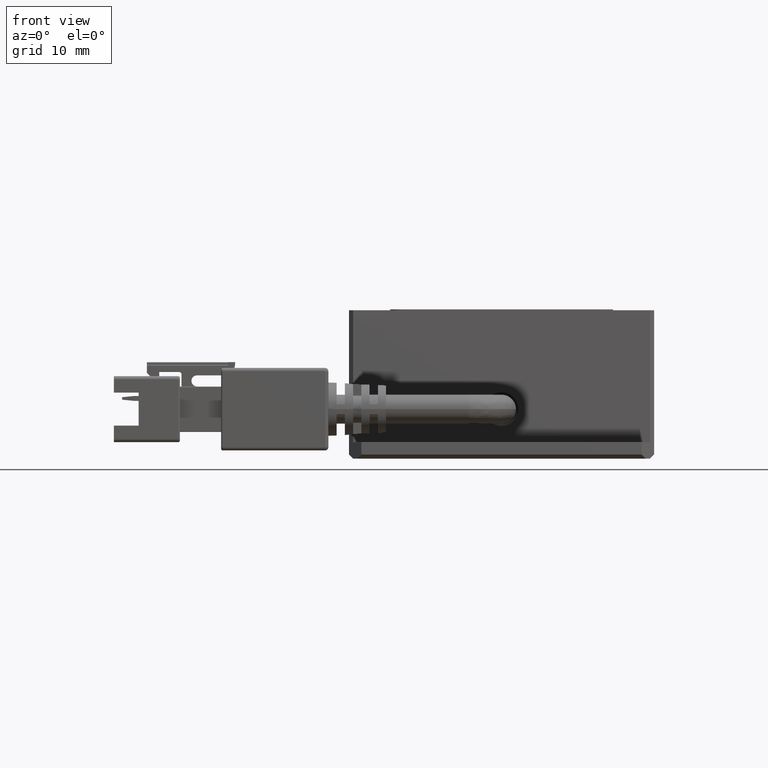
[diagram: clean part render]
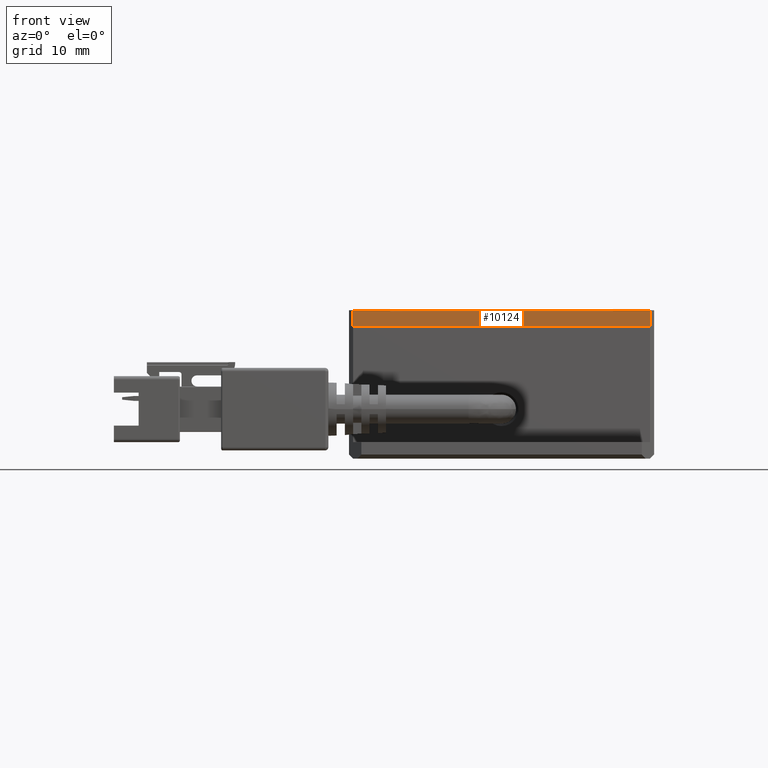
[diagram: same view with one face highlighted and labeled with its STEP entity id]
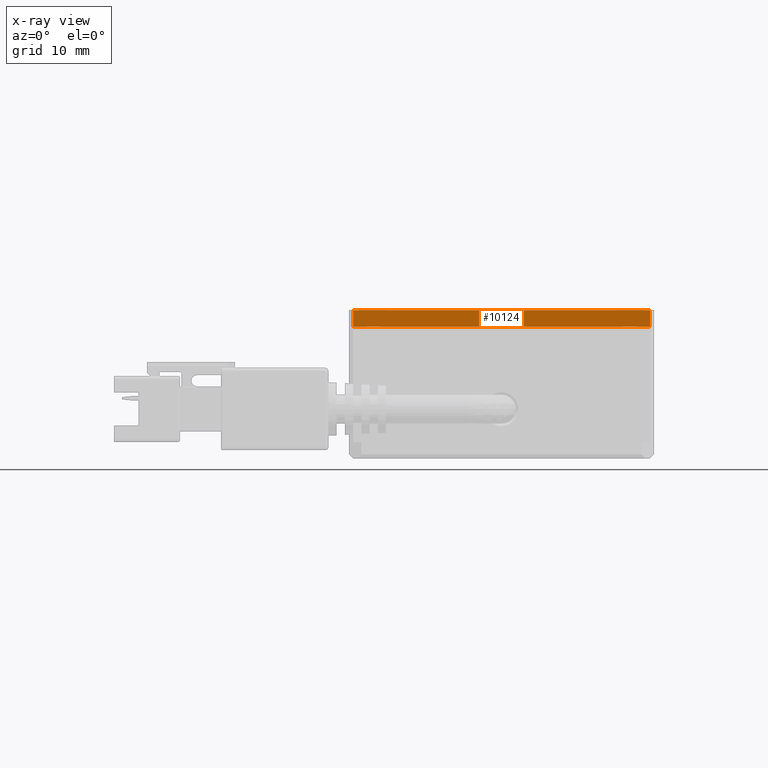
[diagram: x-ray of the same camera — body ghosted, the highlighted face saturated]
A machine part, front view. The second image highlights one B-rep face of the part: STEP entity #10124.
The next image is the same camera in x-ray: the body ghosted, the highlighted face saturated — about 0% of this face is hidden behind the body in this view.
In plain terms, the highlighted planar face has unit normal (0, 1, -0).
Its self-contained STEP definition (entity closure, byte-faithful):
#624 = CARTESIAN_POINT ( 'NONE',  ( -17.52940053455516500, -15.05364642993506900, 15.99999999998363100 ) ) ;
#1585 = EDGE_CURVE ( 'NONE', #14116, #11293, #16653, .T. ) ;
#1887 = CARTESIAN_POINT ( 'NONE',  ( -17.52940053455516500, -15.05364642993506900, 15.99999999998363100 ) ) ;
#1962 = DIRECTION ( 'NONE',  ( 0.0000000000000000000, 0.0000000000000000000, 1.000000000000000000 ) ) ;
#2137 = CARTESIAN_POINT ( 'NONE',  ( 18.47059946544482000, -15.05364642993507300, 15.99999999998363100 ) ) ;
#2189 = DIRECTION ( 'NONE',  ( 1.000000000000000000, -9.376883653928686100E-017, -0.0000000000000000000 ) ) ;
#2345 = EDGE_CURVE ( 'NONE', #20042, #11293, #11696, .T. ) ;
#3496 = ORIENTED_EDGE ( 'NONE', *, *, #2345, .T. ) ;
#5012 = AXIS2_PLACEMENT_3D ( 'NONE', #7755, #18630, #9312 ) ;
#5458 = EDGE_CURVE ( 'NONE', #20042, #11859, #8335, .T. ) ;
#5914 = LINE ( 'NONE', #11517, #13724 ) ;
#7755 = CARTESIAN_POINT ( 'NONE',  ( -18.02940053455517200, -15.05364642993506900, 15.99999999998363100 ) ) ;
#8335 = LINE ( 'NONE', #1887, #12021 ) ;
#8603 = DIRECTION ( 'NONE',  ( 1.000000000000000000, 0.0000000000000000000, -0.0000000000000000000 ) ) ;
#9312 = DIRECTION ( 'NONE',  ( -1.000000000000000000, 9.376883653928686100E-017, 0.0000000000000000000 ) ) ;
#10124 = ADVANCED_FACE ( 'NONE', ( #19255 ), #20123, .F. ) ;
#11293 = VERTEX_POINT ( 'NONE', #11314 ) ;
#11314 = CARTESIAN_POINT ( 'NONE',  ( 18.47059946544482800, -15.05364642993506900, 13.99999999998362900 ) ) ;
#11517 = CARTESIAN_POINT ( 'NONE',  ( -18.02940053455517200, -15.05364642993506900, 15.99999999998363100 ) ) ;
#11571 = CARTESIAN_POINT ( 'NONE',  ( 18.47059946544482400, -15.05364642993507100, 15.99999999998363100 ) ) ;
#11696 = LINE ( 'NONE', #14892, #15355 ) ;
#11859 = VERTEX_POINT ( 'NONE', #624 ) ;
#12021 = VECTOR ( 'NONE', #1962, 1000.000000000000000 ) ;
#13724 = VECTOR ( 'NONE', #2189, 1000.000000000000000 ) ;
#14116 = VERTEX_POINT ( 'NONE', #11571 ) ;
#14117 = CARTESIAN_POINT ( 'NONE',  ( -17.52940053455516500, -15.05364642993506900, 13.99999999998362900 ) ) ;
#14889 = EDGE_LOOP ( 'NONE', ( #19303, #3496, #20033, #15506 ) ) ;
#14892 = CARTESIAN_POINT ( 'NONE',  ( -18.02940053455517200, -15.05364642993506900, 13.99999999998362900 ) ) ;
#15355 = VECTOR ( 'NONE', #8603, 1000.000000000000000 ) ;
#15506 = ORIENTED_EDGE ( 'NONE', *, *, #17959, .F. ) ;
#16139 = VECTOR ( 'NONE', #19335, 1000.000000000000000 ) ;
#16653 = LINE ( 'NONE', #2137, #16139 ) ;
#17959 = EDGE_CURVE ( 'NONE', #11859, #14116, #5914, .T. ) ;
#18630 = DIRECTION ( 'NONE',  ( 9.376883653928686100E-017, 1.000000000000000000, -0.0000000000000000000 ) ) ;
#19255 = FACE_OUTER_BOUND ( 'NONE', #14889, .T. ) ;
#19303 = ORIENTED_EDGE ( 'NONE', *, *, #5458, .F. ) ;
#19335 = DIRECTION ( 'NONE',  ( -0.0000000000000000000, -0.0000000000000000000, -1.000000000000000000 ) ) ;
#20033 = ORIENTED_EDGE ( 'NONE', *, *, #1585, .F. ) ;
#20042 = VERTEX_POINT ( 'NONE', #14117 ) ;
#20123 = PLANE ( 'NONE',  #5012 ) ;